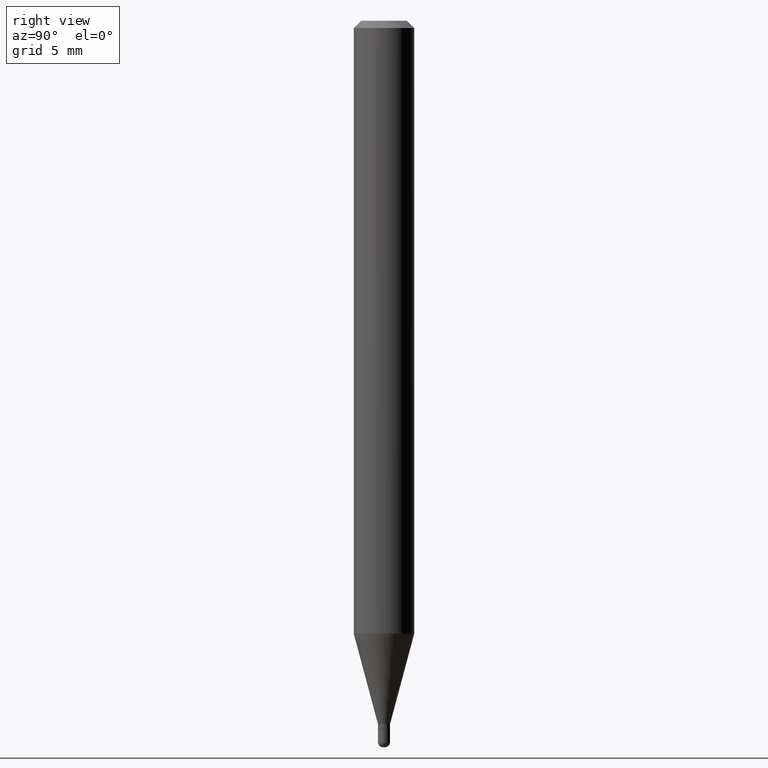
[diagram: clean part render]
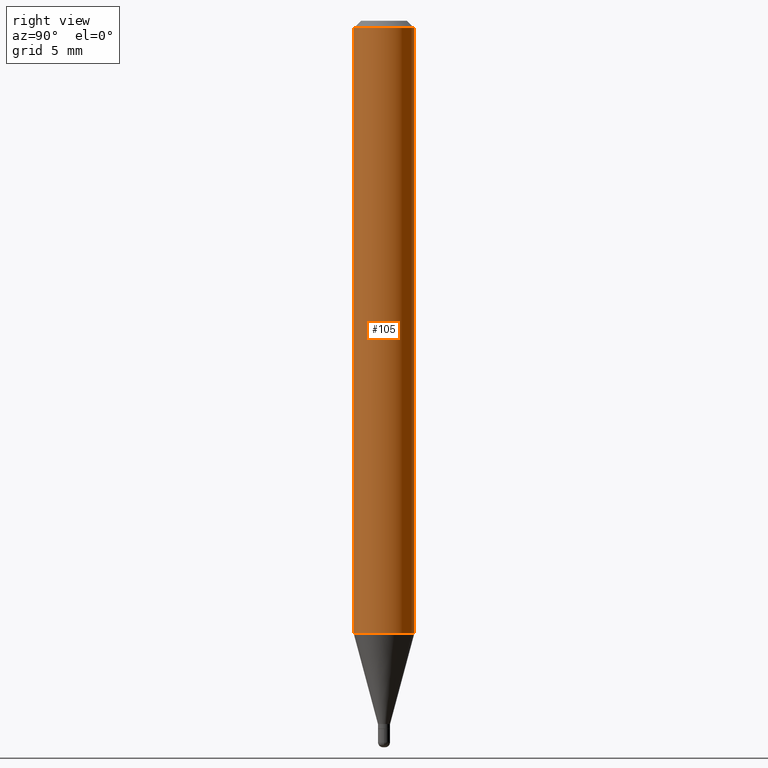
[diagram: same view with one face highlighted and labeled with its STEP entity id]
A machine part, right view. The second image highlights one B-rep face of the part: STEP entity #105.
In plain terms, the highlighted cylindrical surface (edge-blend (fillet) strip) has radius 1.5875 mm, axis along (-0, 0, 1).
Its self-contained STEP definition (entity closure, byte-faithful):
#1 = LINE ( 'NONE', #403, #355 ) ;
#9 = VERTEX_POINT ( 'NONE', #20 ) ;
#18 = CARTESIAN_POINT ( 'NONE',  ( -4.364351673553607559E-16, -0.06250000000000442701, -1.265397459621556253 ) ) ;
#20 = CARTESIAN_POINT ( 'NONE',  ( 4.440892098500936776E-16, 0.06249999999999993755, -0.01499999999999992138 ) ) ;
#24 = CYLINDRICAL_SURFACE ( 'NONE', #241, 0.06250000000000000000 ) ;
#37 = ORIENTED_EDGE ( 'NONE', *, *, #147, .F. ) ;
#43 = CARTESIAN_POINT ( 'NONE',  ( -4.364351673553912750E-16, -0.06250000000000005551, -0.01499999999999948597 ) ) ;
#67 = EDGE_CURVE ( 'NONE', #165, #477, #420, .T. ) ;
#68 = DIRECTION ( 'NONE',  ( -6.982962677686265922E-15, -1.000000000000000000, 4.370956789862821150E-15 ) ) ;
#91 = DIRECTION ( 'NONE',  ( -2.445344394761444786E-29, 3.491659503082930455E-15, 1.000000000000000000 ) ) ;
#105 = ADVANCED_FACE ( 'NONE', ( #216 ), #24, .T. ) ;
#116 = AXIS2_PLACEMENT_3D ( 'NONE', #427, #91, #68 ) ;
#136 = CARTESIAN_POINT ( 'NONE',  ( -4.364351673553916201E-16, -0.06250000000000000000, 2.182287189426831535E-16 ) ) ;
#143 = DIRECTION ( 'NONE',  ( -6.982962677686265922E-15, -1.000000000000000000, 3.483106191921935554E-15 ) ) ;
#147 = EDGE_CURVE ( 'NONE', #477, #9, #468, .T. ) ;
#150 = EDGE_CURVE ( 'NONE', #165, #487, #450, .T. ) ;
#165 = VERTEX_POINT ( 'NONE', #18 ) ;
#178 = CARTESIAN_POINT ( 'NONE',  ( 3.668016592142094662E-31, -5.237489254624291677E-17, -0.01499999999999970281 ) ) ;
#188 = ORIENTED_EDGE ( 'NONE', *, *, #385, .T. ) ;
#216 = FACE_OUTER_BOUND ( 'NONE', #290, .T. ) ;
#221 = CARTESIAN_POINT ( 'NONE',  ( 0.000000000000000000, 0.000000000000000000, 0.000000000000000000 ) ) ;
#241 = AXIS2_PLACEMENT_3D ( 'NONE', #221, #383, #466 ) ;
#244 = ORIENTED_EDGE ( 'NONE', *, *, #67, .F. ) ;
#283 = ORIENTED_EDGE ( 'NONE', *, *, #150, .T. ) ;
#285 = VECTOR ( 'NONE', #295, 39.37007874015748143 ) ;
#290 = EDGE_LOOP ( 'NONE', ( #283, #188, #37, #244 ) ) ;
#291 = AXIS2_PLACEMENT_3D ( 'NONE', #178, #506, #143 ) ;
#295 = DIRECTION ( 'NONE',  ( -2.445344394761445067E-29, 3.491659503082930850E-15, 1.000000000000000000 ) ) ;
#355 = VECTOR ( 'NONE', #492, 39.37007874015748143 ) ;
#383 = DIRECTION ( 'NONE',  ( -2.445344394761444786E-29, 3.491659503082930455E-15, 1.000000000000000000 ) ) ;
#385 = EDGE_CURVE ( 'NONE', #487, #9, #1, .T. ) ;
#403 = CARTESIAN_POINT ( 'NONE',  ( 4.440892098500625669E-16, 0.06250000000000000000, -2.182287189426831535E-16 ) ) ;
#410 = CARTESIAN_POINT ( 'NONE',  ( 4.440892098500933817E-16, 0.06249999999999557992, -1.265397459621556919 ) ) ;
#420 = LINE ( 'NONE', #136, #285 ) ;
#427 = CARTESIAN_POINT ( 'NONE',  ( 3.094332585030945656E-29, -4.418337065064606585E-15, -1.265397459621556697 ) ) ;
#450 = CIRCLE ( 'NONE', #116, 0.06250000000000000000 ) ;
#466 = DIRECTION ( 'NONE',  ( -6.982962677686265922E-15, -1.000000000000000000, 3.491659503082930455E-15 ) ) ;
#468 = CIRCLE ( 'NONE', #291, 0.06250000000000000000 ) ;
#477 = VERTEX_POINT ( 'NONE', #43 ) ;
#487 = VERTEX_POINT ( 'NONE', #410 ) ;
#492 = DIRECTION ( 'NONE',  ( -2.445344394761445067E-29, 3.491659503082930850E-15, 1.000000000000000000 ) ) ;
#506 = DIRECTION ( 'NONE',  ( -2.445344394761444786E-29, 3.491659503082930455E-15, 1.000000000000000000 ) ) ;